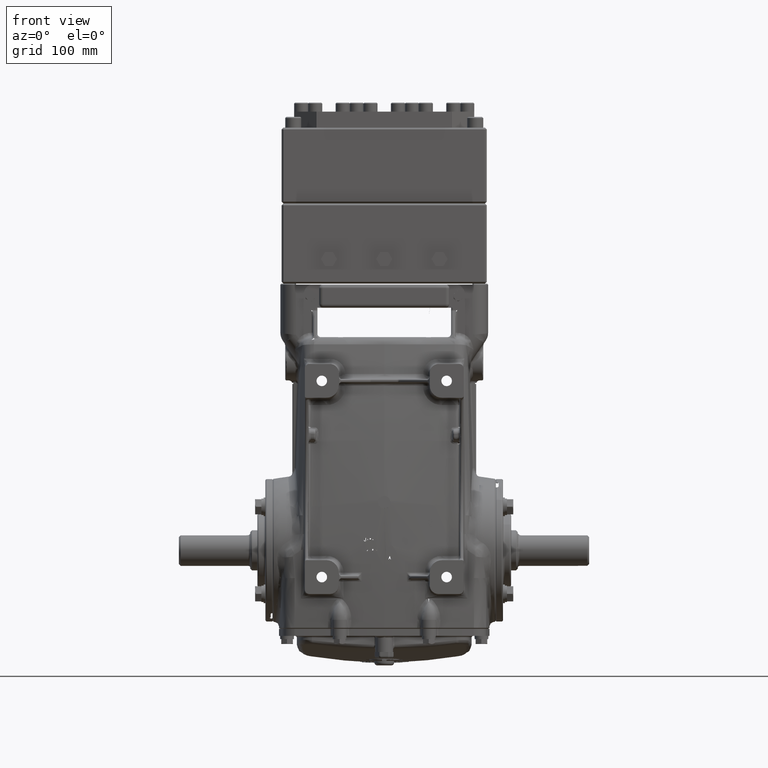
[diagram: clean part render]
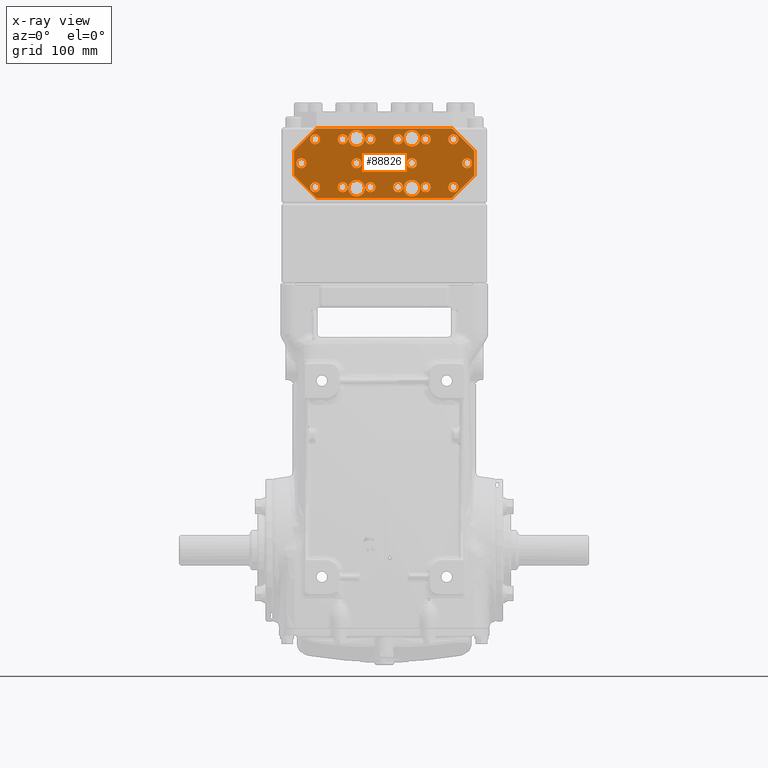
[diagram: x-ray — body ghosted, one internal face saturated and labeled with its STEP entity id]
A machine part, front view, then the same camera in x-ray: the body is ghosted and one INTERNAL B-rep face — a face not visible from any outside direction — is saturated and labeled: STEP entity #88826.
In plain terms, the highlighted planar face has unit normal (0, -1, 0).
Its self-contained STEP definition (entity closure, byte-faithful):
#409 = EDGE_CURVE ( 'NONE', #23062, #51338, #57036, .T. ) ;
#889 = VERTEX_POINT ( 'NONE', #115837 ) ;
#1219 = EDGE_CURVE ( 'NONE', #4310, #50176, #91720, .T. ) ;
#1520 = EDGE_CURVE ( 'NONE', #87775, #26277, #49721, .T. ) ;
#1598 = EDGE_CURVE ( 'NONE', #96779, #42719, #25414, .T. ) ;
#1761 = CARTESIAN_POINT ( 'NONE',  ( 1.830708661417318472, 3.858267716535350722, 18.14357431170542512 ) ) ;
#1814 = ORIENTED_EDGE ( 'NONE', *, *, #44229, .T. ) ;
#1920 = CIRCLE ( 'NONE', #68566, 0.2204724409448816647 ) ;
#1932 = VERTEX_POINT ( 'NONE', #45487 ) ;
#2138 = CIRCLE ( 'NONE', #68801, 0.2204724409448818034 ) ;
#2340 = LINE ( 'NONE', #38660, #75675 ) ;
#2845 = EDGE_CURVE ( 'NONE', #72833, #43502, #76256, .T. ) ;
#3068 = CARTESIAN_POINT ( 'NONE',  ( 3.051181102362205966, 3.858267716535351166, 18.14357431170542512 ) ) ;
#3196 = DIRECTION ( 'NONE',  ( 2.863731955691605534E-16, -1.000000000000000000, 2.785928135093067720E-17 ) ) ;
#3257 = EDGE_CURVE ( 'NONE', #5382, #97002, #116225, .T. ) ;
#3804 = CIRCLE ( 'NONE', #70474, 0.2204724409448816647 ) ;
#3873 = DIRECTION ( 'NONE',  ( 1.000000000000000000, 0.0000000000000000000, 0.0000000000000000000 ) ) ;
#3879 = CIRCLE ( 'NONE', #70547, 0.2204724409448816647 ) ;
#4211 = CARTESIAN_POINT ( 'NONE',  ( 3.051181102362210407, 3.858267716535351166, 16.02965403475128170 ) ) ;
#4310 = VERTEX_POINT ( 'NONE', #92508 ) ;
#4699 = EDGE_CURVE ( 'NONE', #28249, #71355, #101410, .T. ) ;
#4933 = CARTESIAN_POINT ( 'NONE',  ( -3.051181102362204633, 3.858267716535436431, 16.02965403475128170 ) ) ;
#5369 = VECTOR ( 'NONE', #114430, 39.37007874015748143 ) ;
#5382 = VERTEX_POINT ( 'NONE', #21489 ) ;
#5445 = AXIS2_PLACEMENT_3D ( 'NONE', #44732, #81182, #117596 ) ;
#5825 = DIRECTION ( 'NONE',  ( -2.863731955691605534E-16, 1.000000000000000000, -2.785928135093067720E-17 ) ) ;
#6250 = AXIS2_PLACEMENT_3D ( 'NONE', #53762, #90230, #8420 ) ;
#6418 = AXIS2_PLACEMENT_3D ( 'NONE', #113872, #32036, #68457 ) ;
#6785 = FACE_BOUND ( 'NONE', #44187, .T. ) ;
#6945 = ORIENTED_EDGE ( 'NONE', *, *, #72203, .T. ) ;
#7100 = CIRCLE ( 'NONE', #73795, 0.3629921259842515124 ) ;
#7338 = CIRCLE ( 'NONE', #74031, 0.2204724409448816647 ) ;
#7364 = FACE_BOUND ( 'NONE', #90207, .T. ) ;
#7425 = EDGE_CURVE ( 'NONE', #7820, #99810, #12777, .T. ) ;
#7820 = VERTEX_POINT ( 'NONE', #66185 ) ;
#8121 = ORIENTED_EDGE ( 'NONE', *, *, #110276, .T. ) ;
#8156 = CARTESIAN_POINT ( 'NONE',  ( -1.220472440944882608, 3.858267716535349834, 17.08661417322834808 ) ) ;
#8374 = VERTEX_POINT ( 'NONE', #90385 ) ;
#8420 = DIRECTION ( 'NONE',  ( 1.000000000000000000, 0.0000000000000000000, 0.0000000000000000000 ) ) ;
#8725 = DIRECTION ( 'NONE',  ( 1.000000000000000000, 0.0000000000000000000, 0.0000000000000000000 ) ) ;
#8970 = DIRECTION ( 'NONE',  ( -1.000000000000000000, 0.0000000000000000000, 0.0000000000000000000 ) ) ;
#9026 = EDGE_CURVE ( 'NONE', #86258, #65920, #81362, .T. ) ;
#9059 = VERTEX_POINT ( 'NONE', #90101 ) ;
#9411 = CIRCLE ( 'NONE', #76125, 0.2204724409448816647 ) ;
#9540 = AXIS2_PLACEMENT_3D ( 'NONE', #21072, #57422, #93942 ) ;
#10053 = VERTEX_POINT ( 'NONE', #60786 ) ;
#10295 = VERTEX_POINT ( 'NONE', #55970 ) ;
#10653 = LINE ( 'NONE', #47029, #11857 ) ;
#10759 = EDGE_LOOP ( 'NONE', ( #17824, #67074 ) ) ;
#10902 = ORIENTED_EDGE ( 'NONE', *, *, #66620, .F. ) ;
#11202 = DIRECTION ( 'NONE',  ( -2.863731955691605534E-16, 1.000000000000000000, -2.785928135093067720E-17 ) ) ;
#11282 = EDGE_CURVE ( 'NONE', #889, #113065, #56842, .T. ) ;
#11583 = CARTESIAN_POINT ( 'NONE',  ( 2.051181102362204633, 3.858267716535350722, 16.02965403475128170 ) ) ;
#11734 = DIRECTION ( 'NONE',  ( -0.7071067811865473507, -2.221959152992422926E-16, -0.7071067811865476838 ) ) ;
#11857 = VECTOR ( 'NONE', #83467, 39.37007874015748143 ) ;
#12152 = DIRECTION ( 'NONE',  ( -0.7071067811865475727, -1.827969417747897574E-16, 0.7071067811865474617 ) ) ;
#12540 = CARTESIAN_POINT ( 'NONE',  ( 1.610236220472441193, 3.858267716535350722, 16.02965403475128170 ) ) ;
#12627 = AXIS2_PLACEMENT_3D ( 'NONE', #49187, #85642, #3873 ) ;
#12673 = ORIENTED_EDGE ( 'NONE', *, *, #22395, .F. ) ;
#12777 = CIRCLE ( 'NONE', #79496, 0.2204724409448816647 ) ;
#12781 = VERTEX_POINT ( 'NONE', #105324 ) ;
#13461 = CARTESIAN_POINT ( 'NONE',  ( 3.661417322834645383, 3.858267716535350278, 17.08661417322834808 ) ) ;
#13901 = ORIENTED_EDGE ( 'NONE', *, *, #67931, .T. ) ;
#13988 = DIRECTION ( 'NONE',  ( -2.863731955691605534E-16, 1.000000000000000000, -2.785928135093067720E-17 ) ) ;
#14076 = AXIS2_PLACEMENT_3D ( 'NONE', #13461, #49826, #86293 ) ;
#14082 = CARTESIAN_POINT ( 'NONE',  ( -0.6102362204724387507, 3.858267716535350278, 16.02965403475127459 ) ) ;
#14086 = AXIS2_PLACEMENT_3D ( 'NONE', #37987, #74468, #110893 ) ;
#14594 = ORIENTED_EDGE ( 'NONE', *, *, #114781, .T. ) ;
#14858 = CARTESIAN_POINT ( 'NONE',  ( -1.830708661417326244, 3.858267716535348502, 16.02965403475127459 ) ) ;
#14930 = DIRECTION ( 'NONE',  ( 1.000000000000000000, 0.0000000000000000000, 0.0000000000000000000 ) ) ;
#14989 = AXIS2_PLACEMENT_3D ( 'NONE', #78052, #114463, #32633 ) ;
#15023 = ORIENTED_EDGE ( 'NONE', *, *, #116140, .T. ) ;
#15392 = EDGE_LOOP ( 'NONE', ( #90386, #12673 ) ) ;
#15861 = CARTESIAN_POINT ( 'NONE',  ( -0.6102362204724387507, 3.858267716535350278, 16.02965403475127459 ) ) ;
#16063 = ORIENTED_EDGE ( 'NONE', *, *, #26549, .F. ) ;
#16308 = FACE_BOUND ( 'NONE', #72778, .T. ) ;
#17180 = EDGE_LOOP ( 'NONE', ( #107696, #52154 ) ) ;
#17698 = CIRCLE ( 'NONE', #84421, 0.2204724409448816647 ) ;
#17824 = ORIENTED_EDGE ( 'NONE', *, *, #57281, .T. ) ;
#18123 = ORIENTED_EDGE ( 'NONE', *, *, #101088, .F. ) ;
#18427 = CARTESIAN_POINT ( 'NONE',  ( 1.830708661417322913, 3.858267716535350722, 16.02965403475128170 ) ) ;
#18600 = DIRECTION ( 'NONE',  ( 1.000000000000000000, 0.0000000000000000000, 0.0000000000000000000 ) ) ;
#19112 = DIRECTION ( 'NONE',  ( -2.863731955691605534E-16, 1.000000000000000000, -2.785928135093067720E-17 ) ) ;
#19143 = EDGE_CURVE ( 'NONE', #113065, #889, #44314, .T. ) ;
#19162 = ORIENTED_EDGE ( 'NONE', *, *, #1520, .F. ) ;
#19438 = ORIENTED_EDGE ( 'NONE', *, *, #82698, .T. ) ;
#20151 = ORIENTED_EDGE ( 'NONE', *, *, #117678, .T. ) ;
#20341 = EDGE_CURVE ( 'NONE', #26277, #87775, #34919, .T. ) ;
#20434 = AXIS2_PLACEMENT_3D ( 'NONE', #14082, #50452, #86910 ) ;
#20631 = EDGE_CURVE ( 'NONE', #64426, #90520, #115066, .T. ) ;
#20944 = AXIS2_PLACEMENT_3D ( 'NONE', #18427, #54806, #91287 ) ;
#21072 = CARTESIAN_POINT ( 'NONE',  ( -1.220472440944882608, 3.858267716535349834, 15.98425196850393881 ) ) ;
#21430 = EDGE_CURVE ( 'NONE', #87435, #26663, #57458, .T. ) ;
#21489 = CARTESIAN_POINT ( 'NONE',  ( 1.440944881889765217, 3.858267716535349834, 17.08661417322834808 ) ) ;
#21713 = AXIS2_PLACEMENT_3D ( 'NONE', #22975, #59324, #95845 ) ;
#22232 = EDGE_CURVE ( 'NONE', #9059, #96779, #2340, .T. ) ;
#22393 = CARTESIAN_POINT ( 'NONE',  ( -2.051181102362207742, 3.858267716535348502, 16.02965403475127459 ) ) ;
#22395 = EDGE_CURVE ( 'NONE', #50176, #4310, #7100, .T. ) ;
#22507 = ORIENTED_EDGE ( 'NONE', *, *, #11282, .T. ) ;
#22643 = CARTESIAN_POINT ( 'NONE',  ( 0.6102362204724398609, 3.858267716535350278, 16.02965403475128170 ) ) ;
#22975 = CARTESIAN_POINT ( 'NONE',  ( -3.051181102362209074, 3.858267716535349390, 18.14357431170542512 ) ) ;
#23062 = VERTEX_POINT ( 'NONE', #50763 ) ;
#23171 = EDGE_CURVE ( 'NONE', #42719, #23062, #45313, .T. ) ;
#23408 = CARTESIAN_POINT ( 'NONE',  ( -1.830708661417321803, 3.858267716535348502, 18.14357431170542512 ) ) ;
#24071 = CARTESIAN_POINT ( 'NONE',  ( 0.6102362204724397499, 3.858267716535350278, 18.14357431170541446 ) ) ;
#24668 = FACE_BOUND ( 'NONE', #73986, .T. ) ;
#24956 = AXIS2_PLACEMENT_3D ( 'NONE', #75037, #111459, #29630 ) ;
#25265 = FACE_BOUND ( 'NONE', #45506, .T. ) ;
#25379 = CARTESIAN_POINT ( 'NONE',  ( -3.440944881889762552, 3.858267716535349390, 17.08661417322834808 ) ) ;
#25414 = LINE ( 'NONE', #61760, #55420 ) ;
#25518 = CIRCLE ( 'NONE', #92291, 0.2204724409448816647 ) ;
#25602 = DIRECTION ( 'NONE',  ( 1.000000000000000000, 0.0000000000000000000, 0.0000000000000000000 ) ) ;
#25849 = CARTESIAN_POINT ( 'NONE',  ( -3.976377952755904222, 3.858267716535435543, 15.55118110236221085 ) ) ;
#26277 = VERTEX_POINT ( 'NONE', #102065 ) ;
#26549 = EDGE_CURVE ( 'NONE', #42827, #1932, #66398, .T. ) ;
#26663 = VERTEX_POINT ( 'NONE', #98383 ) ;
#27517 = EDGE_LOOP ( 'NONE', ( #14594, #104173 ) ) ;
#28249 = VERTEX_POINT ( 'NONE', #82950 ) ;
#28790 = ORIENTED_EDGE ( 'NONE', *, *, #21430, .F. ) ;
#28914 = VERTEX_POINT ( 'NONE', #36506 ) ;
#28939 = VECTOR ( 'NONE', #11734, 39.37007874015748143 ) ;
#29507 = CARTESIAN_POINT ( 'NONE',  ( 3.976377952755905554, 3.858267716535351166, 17.63779527559055538 ) ) ;
#29630 = DIRECTION ( 'NONE',  ( -1.000000000000000000, 0.0000000000000000000, 0.0000000000000000000 ) ) ;
#29834 = AXIS2_PLACEMENT_3D ( 'NONE', #70948, #107400, #25602 ) ;
#30895 = DIRECTION ( 'NONE',  ( -1.000000000000000000, 0.0000000000000000000, 0.0000000000000000000 ) ) ;
#30956 = VERTEX_POINT ( 'NONE', #39675 ) ;
#31044 = DIRECTION ( 'NONE',  ( -2.863731955691605534E-16, 1.000000000000000000, -2.785928135093067720E-17 ) ) ;
#31463 = AXIS2_PLACEMENT_3D ( 'NONE', #15861, #52253, #88714 ) ;
#32014 = CARTESIAN_POINT ( 'NONE',  ( 3.661417322834645383, 3.858267716535350278, 17.08661417322834808 ) ) ;
#32036 = DIRECTION ( 'NONE',  ( -2.863731955691605534E-16, 1.000000000000000000, -2.785928135093067720E-17 ) ) ;
#32114 = CARTESIAN_POINT ( 'NONE',  ( -1.610236220472440083, 3.858267716535348502, 18.14357431170542512 ) ) ;
#32633 = DIRECTION ( 'NONE',  ( -1.000000000000000000, 0.0000000000000000000, 0.0000000000000000000 ) ) ;
#33551 = VERTEX_POINT ( 'NONE', #38338 ) ;
#33702 = CARTESIAN_POINT ( 'NONE',  ( 0.8574803149606319286, 3.858267716535350722, 15.98425196850393881 ) ) ;
#33731 = DIRECTION ( 'NONE',  ( 2.863731955691605534E-16, -1.000000000000000000, 2.785928135093067720E-17 ) ) ;
#34136 = DIRECTION ( 'NONE',  ( -2.863731955691605534E-16, 1.000000000000000000, -2.785928135093067720E-17 ) ) ;
#34167 = FACE_BOUND ( 'NONE', #104483, .T. ) ;
#34333 = ORIENTED_EDGE ( 'NONE', *, *, #108439, .T. ) ;
#34763 = FACE_OUTER_BOUND ( 'NONE', #46681, .T. ) ;
#34919 = CIRCLE ( 'NONE', #50177, 0.3629921259842515124 ) ;
#35358 = CARTESIAN_POINT ( 'NONE',  ( -3.051181102362204633, 3.858267716535436431, 16.02965403475128170 ) ) ;
#36339 = LINE ( 'NONE', #72805, #76788 ) ;
#36506 = CARTESIAN_POINT ( 'NONE',  ( 0.8307086614173214700, 3.858267716535350278, 16.02965403475128170 ) ) ;
#37240 = CIRCLE ( 'NONE', #104051, 0.2204724409448816647 ) ;
#37783 = CARTESIAN_POINT ( 'NONE',  ( 2.992125984251967630, 3.858267716535351166, 18.62204724409448886 ) ) ;
#37987 = CARTESIAN_POINT ( 'NONE',  ( -1.830708661417321803, 3.858267716535348502, 18.14357431170542512 ) ) ;
#38077 = DIRECTION ( 'NONE',  ( -2.863731955691605534E-16, 1.000000000000000000, -2.785928135093067720E-17 ) ) ;
#38194 = EDGE_CURVE ( 'NONE', #68977, #107352, #25518, .T. ) ;
#38316 = EDGE_CURVE ( 'NONE', #28914, #10295, #96125, .T. ) ;
#38338 = CARTESIAN_POINT ( 'NONE',  ( 2.051181102362200193, 3.858267716535350722, 18.14357431170542512 ) ) ;
#38660 = CARTESIAN_POINT ( 'NONE',  ( -2.992125984251970738, 3.858267716535349834, 18.62204724409449597 ) ) ;
#39403 = DIRECTION ( 'NONE',  ( -2.863731955691605534E-16, 1.000000000000000000, -2.785928135093067720E-17 ) ) ;
#39514 = DIRECTION ( 'NONE',  ( -1.000000000000000000, 0.0000000000000000000, 0.0000000000000000000 ) ) ;
#39675 = CARTESIAN_POINT ( 'NONE',  ( -0.8307086614173204708, 3.858267716535350278, 16.02965403475127459 ) ) ;
#40028 = EDGE_LOOP ( 'NONE', ( #53250, #13901 ) ) ;
#40541 = CARTESIAN_POINT ( 'NONE',  ( -0.3897637795275571970, 3.858267716535350278, 18.14357431170541446 ) ) ;
#40546 = DIRECTION ( 'NONE',  ( -2.863731955691605534E-16, 1.000000000000000000, -2.785928135093067720E-17 ) ) ;
#41091 = AXIS2_PLACEMENT_3D ( 'NONE', #8156, #44521, #80980 ) ;
#41287 = DIRECTION ( 'NONE',  ( -2.863731955691605534E-16, 1.000000000000000000, -2.785928135093067720E-17 ) ) ;
#41568 = LINE ( 'NONE', #78019, #5369 ) ;
#41617 = CARTESIAN_POINT ( 'NONE',  ( -1.220472440944882608, 3.858267716535348502, 18.18897637795275912 ) ) ;
#42171 = DIRECTION ( 'NONE',  ( 1.000000000000000000, 0.0000000000000000000, 0.0000000000000000000 ) ) ;
#42719 = VERTEX_POINT ( 'NONE', #29507 ) ;
#42827 = VERTEX_POINT ( 'NONE', #61038 ) ;
#43126 = FACE_BOUND ( 'NONE', #51272, .T. ) ;
#43391 = CARTESIAN_POINT ( 'NONE',  ( -3.661417322834644050, 3.858267716535349390, 17.08661417322834808 ) ) ;
#43502 = VERTEX_POINT ( 'NONE', #45080 ) ;
#43518 = AXIS2_PLACEMENT_3D ( 'NONE', #43391, #79854, #116246 ) ;
#43669 = VERTEX_POINT ( 'NONE', #80723 ) ;
#43708 = FACE_BOUND ( 'NONE', #100930, .T. ) ;
#43936 = CIRCLE ( 'NONE', #110718, 0.2204724409448816647 ) ;
#44187 = EDGE_LOOP ( 'NONE', ( #16063, #10902 ) ) ;
#44229 = EDGE_CURVE ( 'NONE', #94319, #113404, #95067, .T. ) ;
#44295 = EDGE_LOOP ( 'NONE', ( #96541, #8121 ) ) ;
#44314 = CIRCLE ( 'NONE', #111072, 0.2204724409448816647 ) ;
#44521 = DIRECTION ( 'NONE',  ( -2.863731955691605534E-16, 1.000000000000000000, -2.785928135093067720E-17 ) ) ;
#44568 = AXIS2_PLACEMENT_3D ( 'NONE', #22643, #58985, #95503 ) ;
#44732 = CARTESIAN_POINT ( 'NONE',  ( 0.6102362204724397499, 3.858267716535350278, 18.14357431170541446 ) ) ;
#45080 = CARTESIAN_POINT ( 'NONE',  ( -0.8574803149606310404, 3.858267716535349834, 15.98425196850393881 ) ) ;
#45313 = LINE ( 'NONE', #81765, #109857 ) ;
#45487 = CARTESIAN_POINT ( 'NONE',  ( 0.8574803149606319286, 3.858267716535349834, 18.18897637795275912 ) ) ;
#45506 = EDGE_LOOP ( 'NONE', ( #100691, #65620 ) ) ;
#46257 = CIRCLE ( 'NONE', #113008, 0.3629921259842515124 ) ;
#46681 = EDGE_LOOP ( 'NONE', ( #117213, #28790, #63998, #65181, #111783, #47874, #49043, #67527 ) ) ;
#47029 = CARTESIAN_POINT ( 'NONE',  ( -2.992125984251966297, 3.858267716535436431, 15.55118110236221085 ) ) ;
#47453 = CARTESIAN_POINT ( 'NONE',  ( 2.992125984251971627, 3.858267716535350722, 15.55118110236221085 ) ) ;
#47572 = DIRECTION ( 'NONE',  ( 1.000000000000000000, 0.0000000000000000000, 0.0000000000000000000 ) ) ;
#47874 = ORIENTED_EDGE ( 'NONE', *, *, #1598, .F. ) ;
#48019 = ORIENTED_EDGE ( 'NONE', *, *, #38194, .T. ) ;
#48938 = AXIS2_PLACEMENT_3D ( 'NONE', #14858, #51232, #87675 ) ;
#49043 = ORIENTED_EDGE ( 'NONE', *, *, #22232, .F. ) ;
#49187 = CARTESIAN_POINT ( 'NONE',  ( -0.6102362204724388617, 3.858267716535350278, 18.14357431170541446 ) ) ;
#49465 = AXIS2_PLACEMENT_3D ( 'NONE', #87597, #5825, #42171 ) ;
#49721 = CIRCLE ( 'NONE', #101254, 0.3629921259842515124 ) ;
#49826 = DIRECTION ( 'NONE',  ( -2.863731955691605534E-16, 1.000000000000000000, -2.785928135093067720E-17 ) ) ;
#49881 = AXIS2_PLACEMENT_3D ( 'NONE', #115963, #34136, #70570 ) ;
#50176 = VERTEX_POINT ( 'NONE', #83865 ) ;
#50177 = AXIS2_PLACEMENT_3D ( 'NONE', #84956, #3196, #39514 ) ;
#50180 = CARTESIAN_POINT ( 'NONE',  ( -1.583464566929134065, 3.858267716535349834, 15.98425196850393881 ) ) ;
#50326 = CIRCLE ( 'NONE', #117084, 0.3629921259842515124 ) ;
#50358 = DIRECTION ( 'NONE',  ( 1.000000000000000000, 0.0000000000000000000, 0.0000000000000000000 ) ) ;
#50452 = DIRECTION ( 'NONE',  ( -2.863731955691605534E-16, 1.000000000000000000, -2.785928135093067720E-17 ) ) ;
#50763 = CARTESIAN_POINT ( 'NONE',  ( 3.976377952755905554, 3.858267716535351166, 16.53543307086614433 ) ) ;
#50977 = ORIENTED_EDGE ( 'NONE', *, *, #20631, .T. ) ;
#51232 = DIRECTION ( 'NONE',  ( -2.863731955691605534E-16, 1.000000000000000000, -2.785928135093067720E-17 ) ) ;
#51272 = EDGE_LOOP ( 'NONE', ( #69151, #19162 ) ) ;
#51338 = VERTEX_POINT ( 'NONE', #47453 ) ;
#52005 = ORIENTED_EDGE ( 'NONE', *, *, #89478, .T. ) ;
#52154 = ORIENTED_EDGE ( 'NONE', *, *, #110257, .T. ) ;
#52253 = DIRECTION ( 'NONE',  ( -2.863731955691605534E-16, 1.000000000000000000, -2.785928135093067720E-17 ) ) ;
#52644 = VERTEX_POINT ( 'NONE', #72318 ) ;
#52697 = FACE_BOUND ( 'NONE', #94470, .T. ) ;
#53250 = ORIENTED_EDGE ( 'NONE', *, *, #56533, .T. ) ;
#53762 = CARTESIAN_POINT ( 'NONE',  ( -3.661417322834644050, 3.858267716535349390, 17.08661417322834808 ) ) ;
#53936 = CARTESIAN_POINT ( 'NONE',  ( 3.271653543307091905, 3.858267716535351166, 16.02965403475128170 ) ) ;
#54054 = CARTESIAN_POINT ( 'NONE',  ( 1.830708661417318472, 3.858267716535350722, 18.14357431170542512 ) ) ;
#54298 = CARTESIAN_POINT ( 'NONE',  ( 1.220472440944883497, 3.858267716535349834, 18.18897637795275912 ) ) ;
#54421 = CARTESIAN_POINT ( 'NONE',  ( 1.000000000000001776, 3.858267716535349834, 17.08661417322834808 ) ) ;
#54806 = DIRECTION ( 'NONE',  ( -2.863731955691605534E-16, 1.000000000000000000, -2.785928135093067720E-17 ) ) ;
#55360 = VERTEX_POINT ( 'NONE', #93009 ) ;
#55420 = VECTOR ( 'NONE', #98288, 39.37007874015748854 ) ;
#55482 = DIRECTION ( 'NONE',  ( 1.000000000000000000, 0.0000000000000000000, 0.0000000000000000000 ) ) ;
#55872 = AXIS2_PLACEMENT_3D ( 'NONE', #4211, #40546, #77007 ) ;
#55970 = CARTESIAN_POINT ( 'NONE',  ( 0.3897637795275581407, 3.858267716535350278, 16.02965403475128170 ) ) ;
#56533 = EDGE_CURVE ( 'NONE', #80873, #10053, #9411, .T. ) ;
#56842 = CIRCLE ( 'NONE', #5445, 0.2204724409448816647 ) ;
#57036 = LINE ( 'NONE', #93553, #28939 ) ;
#57281 = EDGE_CURVE ( 'NONE', #43669, #62561, #3804, .T. ) ;
#57422 = DIRECTION ( 'NONE',  ( 2.863731955691605534E-16, -1.000000000000000000, 2.785928135093067720E-17 ) ) ;
#57458 = LINE ( 'NONE', #93979, #77454 ) ;
#57646 = CIRCLE ( 'NONE', #6250, 0.2204724409448816647 ) ;
#57811 = CIRCLE ( 'NONE', #6418, 0.2204724409448816647 ) ;
#58985 = DIRECTION ( 'NONE',  ( -2.863731955691605534E-16, 1.000000000000000000, -2.785928135093067720E-17 ) ) ;
#59324 = DIRECTION ( 'NONE',  ( -2.863731955691605534E-16, 1.000000000000000000, -2.785928135093067720E-17 ) ) ;
#59357 = EDGE_LOOP ( 'NONE', ( #6945, #87256 ) ) ;
#59755 = DIRECTION ( 'NONE',  ( -2.863731955691605534E-16, 1.000000000000000000, -2.785928135093067720E-17 ) ) ;
#60232 = CARTESIAN_POINT ( 'NONE',  ( -3.051181102362209074, 3.858267716535349390, 18.14357431170542512 ) ) ;
#60431 = DIRECTION ( 'NONE',  ( -2.863731955691605534E-16, 1.000000000000000000, -2.785928135093067720E-17 ) ) ;
#60786 = CARTESIAN_POINT ( 'NONE',  ( -2.051181102362203301, 3.858267716535348502, 18.14357431170542512 ) ) ;
#60901 = ORIENTED_EDGE ( 'NONE', *, *, #105226, .T. ) ;
#61038 = CARTESIAN_POINT ( 'NONE',  ( 1.583464566929134953, 3.858267716535349834, 18.18897637795275912 ) ) ;
#61612 = FACE_BOUND ( 'NONE', #59357, .T. ) ;
#61760 = CARTESIAN_POINT ( 'NONE',  ( 2.992125984251967630, 3.858267716535351166, 18.62204724409448886 ) ) ;
#61928 = ORIENTED_EDGE ( 'NONE', *, *, #38316, .T. ) ;
#62197 = DIRECTION ( 'NONE',  ( 2.863731955691625748E-16, -1.000000000000000000, 2.785928135093067104E-17 ) ) ;
#62561 = VERTEX_POINT ( 'NONE', #106040 ) ;
#62989 = EDGE_CURVE ( 'NONE', #62561, #43669, #3879, .T. ) ;
#63534 = AXIS2_PLACEMENT_3D ( 'NONE', #63894, #100402, #18600 ) ;
#63894 = CARTESIAN_POINT ( 'NONE',  ( -1.830708661417326244, 3.858267716535348502, 16.02965403475127459 ) ) ;
#63998 = ORIENTED_EDGE ( 'NONE', *, *, #78675, .F. ) ;
#64036 = CIRCLE ( 'NONE', #12627, 0.2204724409448817202 ) ;
#64426 = VERTEX_POINT ( 'NONE', #108700 ) ;
#65181 = ORIENTED_EDGE ( 'NONE', *, *, #409, .F. ) ;
#65470 = CIRCLE ( 'NONE', #14076, 0.2204724409448816647 ) ;
#65478 = CIRCLE ( 'NONE', #14086, 0.2204724409448816647 ) ;
#65620 = ORIENTED_EDGE ( 'NONE', *, *, #4699, .T. ) ;
#65920 = VERTEX_POINT ( 'NONE', #99702 ) ;
#66185 = CARTESIAN_POINT ( 'NONE',  ( -2.830708661417327576, 3.858267716535349390, 18.14357431170542512 ) ) ;
#66398 = CIRCLE ( 'NONE', #14989, 0.3629921259842515124 ) ;
#66620 = EDGE_CURVE ( 'NONE', #1932, #42827, #46257, .T. ) ;
#66624 = EDGE_CURVE ( 'NONE', #105619, #9059, #36339, .T. ) ;
#66933 = EDGE_LOOP ( 'NONE', ( #77563, #15023 ) ) ;
#67074 = ORIENTED_EDGE ( 'NONE', *, *, #62989, .T. ) ;
#67462 = DIRECTION ( 'NONE',  ( 1.000000000000000000, 0.0000000000000000000, 0.0000000000000000000 ) ) ;
#67527 = ORIENTED_EDGE ( 'NONE', *, *, #66624, .F. ) ;
#67931 = EDGE_CURVE ( 'NONE', #10053, #80873, #65478, .T. ) ;
#68439 = DIRECTION ( 'NONE',  ( -2.863731955691605534E-16, 1.000000000000000000, -2.785928135093067720E-17 ) ) ;
#68457 = DIRECTION ( 'NONE',  ( 1.000000000000000000, 0.0000000000000000000, 0.0000000000000000000 ) ) ;
#68566 = AXIS2_PLACEMENT_3D ( 'NONE', #95801, #13988, #50358 ) ;
#68801 = AXIS2_PLACEMENT_3D ( 'NONE', #112877, #31044, #67462 ) ;
#68977 = VERTEX_POINT ( 'NONE', #12540 ) ;
#69151 = ORIENTED_EDGE ( 'NONE', *, *, #20341, .F. ) ;
#69905 = ORIENTED_EDGE ( 'NONE', *, *, #83001, .T. ) ;
#70168 = DIRECTION ( 'NONE',  ( -1.000000000000000000, 0.0000000000000000000, 0.0000000000000000000 ) ) ;
#70474 = AXIS2_PLACEMENT_3D ( 'NONE', #4933, #41287, #77741 ) ;
#70547 = AXIS2_PLACEMENT_3D ( 'NONE', #35358, #71802, #108266 ) ;
#70570 = DIRECTION ( 'NONE',  ( 1.000000000000000000, 0.0000000000000000000, 0.0000000000000000000 ) ) ;
#70601 = FACE_BOUND ( 'NONE', #40028, .T. ) ;
#70948 = CARTESIAN_POINT ( 'NONE',  ( -0.6102362204724388617, 3.858267716535350278, 18.14357431170541446 ) ) ;
#71198 = FACE_BOUND ( 'NONE', #93947, .T. ) ;
#71355 = VERTEX_POINT ( 'NONE', #114339 ) ;
#71802 = DIRECTION ( 'NONE',  ( -2.863731955691605534E-16, 1.000000000000000000, -2.785928135093067720E-17 ) ) ;
#71888 = CIRCLE ( 'NONE', #20434, 0.2204724409448817202 ) ;
#72203 = EDGE_CURVE ( 'NONE', #55360, #30956, #82992, .T. ) ;
#72318 = CARTESIAN_POINT ( 'NONE',  ( 3.440944881889763440, 3.858267716535350278, 17.08661417322834808 ) ) ;
#72395 = CIRCLE ( 'NONE', #20944, 0.2204724409448816647 ) ;
#72778 = EDGE_LOOP ( 'NONE', ( #109715, #20151 ) ) ;
#72805 = CARTESIAN_POINT ( 'NONE',  ( -3.976377952755904222, 3.858267716535348058, 17.63779527559055538 ) ) ;
#72833 = VERTEX_POINT ( 'NONE', #50180 ) ;
#73150 = CIRCLE ( 'NONE', #21713, 0.2204724409448816647 ) ;
#73435 = ORIENTED_EDGE ( 'NONE', *, *, #81387, .T. ) ;
#73795 = AXIS2_PLACEMENT_3D ( 'NONE', #41617, #78063, #114473 ) ;
#73986 = EDGE_LOOP ( 'NONE', ( #18123, #90079 ) ) ;
#74031 = AXIS2_PLACEMENT_3D ( 'NONE', #1761, #38077, #74566 ) ;
#74463 = ORIENTED_EDGE ( 'NONE', *, *, #94315, .T. ) ;
#74468 = DIRECTION ( 'NONE',  ( -2.863731955691605534E-16, 1.000000000000000000, -2.785928135093067720E-17 ) ) ;
#74566 = DIRECTION ( 'NONE',  ( 1.000000000000000000, 0.0000000000000000000, 0.0000000000000000000 ) ) ;
#75037 = CARTESIAN_POINT ( 'NONE',  ( -1.220472440944882608, 3.858267716535348502, 18.18897637795275912 ) ) ;
#75134 = DIRECTION ( 'NONE',  ( 1.000000000000000000, 2.863731955691625748E-16, 4.977743363697658575E-16 ) ) ;
#75531 = EDGE_LOOP ( 'NONE', ( #73435, #1814 ) ) ;
#75675 = VECTOR ( 'NONE', #75134, 39.37007874015748143 ) ;
#75883 = DIRECTION ( 'NONE',  ( 1.000000000000000000, 0.0000000000000000000, 0.0000000000000000000 ) ) ;
#76125 = AXIS2_PLACEMENT_3D ( 'NONE', #23408, #59755, #96279 ) ;
#76234 = EDGE_CURVE ( 'NONE', #12781, #33551, #7338, .T. ) ;
#76256 = CIRCLE ( 'NONE', #9540, 0.3629921259842515124 ) ;
#76301 = CARTESIAN_POINT ( 'NONE',  ( -1.220472440944882608, 3.858267716535349834, 15.98425196850393881 ) ) ;
#76788 = VECTOR ( 'NONE', #109249, 39.37007874015748143 ) ;
#77007 = DIRECTION ( 'NONE',  ( 1.000000000000000000, 0.0000000000000000000, 0.0000000000000000000 ) ) ;
#77454 = VECTOR ( 'NONE', #12152, 39.37007874015748143 ) ;
#77563 = ORIENTED_EDGE ( 'NONE', *, *, #7425, .T. ) ;
#77741 = DIRECTION ( 'NONE',  ( 1.000000000000000000, 0.0000000000000000000, 0.0000000000000000000 ) ) ;
#78019 = CARTESIAN_POINT ( 'NONE',  ( -3.976377952755904222, 3.858267716535348058, 17.63779527559055538 ) ) ;
#78052 = CARTESIAN_POINT ( 'NONE',  ( 1.220472440944883497, 3.858267716535349834, 18.18897637795275912 ) ) ;
#78063 = DIRECTION ( 'NONE',  ( 2.863731955691605534E-16, -1.000000000000000000, 2.785928135093067720E-17 ) ) ;
#78675 = EDGE_CURVE ( 'NONE', #51338, #87435, #10653, .T. ) ;
#79496 = AXIS2_PLACEMENT_3D ( 'NONE', #60232, #96759, #14930 ) ;
#79597 = FACE_BOUND ( 'NONE', #66933, .T. ) ;
#79854 = DIRECTION ( 'NONE',  ( -2.863731955691605534E-16, 1.000000000000000000, -2.785928135093067720E-17 ) ) ;
#80072 = EDGE_LOOP ( 'NONE', ( #61928, #74463 ) ) ;
#80173 = FACE_BOUND ( 'NONE', #27517, .T. ) ;
#80723 = CARTESIAN_POINT ( 'NONE',  ( -2.830708661417323135, 3.858267716535436431, 16.02965403475128170 ) ) ;
#80873 = VERTEX_POINT ( 'NONE', #32114 ) ;
#80980 = DIRECTION ( 'NONE',  ( 1.000000000000000000, 0.0000000000000000000, 0.0000000000000000000 ) ) ;
#81182 = DIRECTION ( 'NONE',  ( -2.863731955691605534E-16, 1.000000000000000000, -2.785928135093067720E-17 ) ) ;
#81362 = CIRCLE ( 'NONE', #29834, 0.2204724409448817202 ) ;
#81387 = EDGE_CURVE ( 'NONE', #113404, #94319, #57646, .T. ) ;
#81765 = CARTESIAN_POINT ( 'NONE',  ( 3.976377952755905554, 3.858267716535351166, 17.63779527559055538 ) ) ;
#82316 = EDGE_CURVE ( 'NONE', #83273, #116277, #107390, .T. ) ;
#82698 = EDGE_CURVE ( 'NONE', #116277, #83273, #57811, .T. ) ;
#82950 = CARTESIAN_POINT ( 'NONE',  ( -1.440944881889764106, 3.858267716535349834, 17.08661417322834808 ) ) ;
#82992 = CIRCLE ( 'NONE', #31463, 0.2204724409448817202 ) ;
#83001 = EDGE_CURVE ( 'NONE', #52644, #86534, #65470, .T. ) ;
#83273 = VERTEX_POINT ( 'NONE', #108334 ) ;
#83467 = DIRECTION ( 'NONE',  ( -1.000000000000000000, -2.863731955691625748E-16, -3.151718652143126634E-16 ) ) ;
#83865 = CARTESIAN_POINT ( 'NONE',  ( -1.583464566929134065, 3.858267716535348502, 18.18897637795275912 ) ) ;
#84010 = CARTESIAN_POINT ( 'NONE',  ( -3.881889763779525548, 3.858267716535349390, 17.08661417322834808 ) ) ;
#84421 = AXIS2_PLACEMENT_3D ( 'NONE', #54054, #90528, #8725 ) ;
#84956 = CARTESIAN_POINT ( 'NONE',  ( 1.220472440944883497, 3.858267716535350722, 15.98425196850393881 ) ) ;
#85214 = CIRCLE ( 'NONE', #48938, 0.2204724409448816647 ) ;
#85642 = DIRECTION ( 'NONE',  ( -2.863731955691605534E-16, 1.000000000000000000, -2.785928135093067720E-17 ) ) ;
#86258 = VERTEX_POINT ( 'NONE', #40541 ) ;
#86293 = DIRECTION ( 'NONE',  ( 1.000000000000000000, 0.0000000000000000000, 0.0000000000000000000 ) ) ;
#86534 = VERTEX_POINT ( 'NONE', #93070 ) ;
#86910 = DIRECTION ( 'NONE',  ( 1.000000000000000000, 0.0000000000000000000, 0.0000000000000000000 ) ) ;
#87256 = ORIENTED_EDGE ( 'NONE', *, *, #107108, .T. ) ;
#87435 = VERTEX_POINT ( 'NONE', #96165 ) ;
#87597 = CARTESIAN_POINT ( 'NONE',  ( 1.220472440944883497, 3.858267716535349834, 17.08661417322834808 ) ) ;
#87675 = DIRECTION ( 'NONE',  ( 1.000000000000000000, 0.0000000000000000000, 0.0000000000000000000 ) ) ;
#87775 = VERTEX_POINT ( 'NONE', #33702 ) ;
#88354 = CARTESIAN_POINT ( 'NONE',  ( -3.976377952755904222, 3.858267716535348058, 17.63779527559055538 ) ) ;
#88572 = FACE_BOUND ( 'NONE', #15392, .T. ) ;
#88714 = DIRECTION ( 'NONE',  ( 1.000000000000000000, 0.0000000000000000000, 0.0000000000000000000 ) ) ;
#88826 = ADVANCED_FACE ( 'NONE', ( #24668, #88572, #6785, #43126, #79597, #115992, #34167, #70601, #107059, #25265, #61612, #98132, #16308, #52697, #89161, #7364, #43708, #80173, #116580, #34763, #71198 ), #107653, .T. ) ;
#89161 = FACE_BOUND ( 'NONE', #44295, .T. ) ;
#89478 = EDGE_CURVE ( 'NONE', #90520, #64426, #85214, .T. ) ;
#89672 = CARTESIAN_POINT ( 'NONE',  ( -3.271653543307091017, 3.858267716535349390, 18.14357431170542512 ) ) ;
#89835 = CIRCLE ( 'NONE', #105069, 0.2204724409448816647 ) ;
#90079 = ORIENTED_EDGE ( 'NONE', *, *, #2845, .F. ) ;
#90101 = CARTESIAN_POINT ( 'NONE',  ( -2.992125984251970738, 3.858267716535349834, 18.62204724409449597 ) ) ;
#90207 = EDGE_LOOP ( 'NONE', ( #34333, #48019 ) ) ;
#90230 = DIRECTION ( 'NONE',  ( -2.863731955691605534E-16, 1.000000000000000000, -2.785928135093067720E-17 ) ) ;
#90385 = CARTESIAN_POINT ( 'NONE',  ( 3.271653543307087464, 3.858267716535351166, 18.14357431170542512 ) ) ;
#90386 = ORIENTED_EDGE ( 'NONE', *, *, #1219, .F. ) ;
#90520 = VERTEX_POINT ( 'NONE', #22393 ) ;
#90528 = DIRECTION ( 'NONE',  ( -2.863731955691605534E-16, 1.000000000000000000, -2.785928135093067720E-17 ) ) ;
#90770 = DIRECTION ( 'NONE',  ( 2.863731955691605534E-16, -1.000000000000000000, 2.785928135093067720E-17 ) ) ;
#91099 = EDGE_CURVE ( 'NONE', #26663, #105619, #41568, .T. ) ;
#91287 = DIRECTION ( 'NONE',  ( 1.000000000000000000, 0.0000000000000000000, 0.0000000000000000000 ) ) ;
#91720 = CIRCLE ( 'NONE', #24956, 0.3629921259842515124 ) ;
#92291 = AXIS2_PLACEMENT_3D ( 'NONE', #100907, #19112, #55482 ) ;
#92508 = CARTESIAN_POINT ( 'NONE',  ( -0.8574803149606310404, 3.858267716535348502, 18.18897637795275912 ) ) ;
#92661 = CIRCLE ( 'NONE', #41091, 0.2204724409448816647 ) ;
#93009 = CARTESIAN_POINT ( 'NONE',  ( -0.3897637795275570305, 3.858267716535350278, 16.02965403475127459 ) ) ;
#93036 = CARTESIAN_POINT ( 'NONE',  ( 0.6102362204724398609, 3.858267716535350278, 16.02965403475128170 ) ) ;
#93070 = CARTESIAN_POINT ( 'NONE',  ( 3.881889763779526881, 3.858267716535350278, 17.08661417322834808 ) ) ;
#93264 = EDGE_CURVE ( 'NONE', #8374, #100724, #1920, .T. ) ;
#93553 = CARTESIAN_POINT ( 'NONE',  ( 2.992125984251971627, 3.858267716535350722, 15.55118110236221085 ) ) ;
#93942 = DIRECTION ( 'NONE',  ( -1.000000000000000000, 0.0000000000000000000, 0.0000000000000000000 ) ) ;
#93947 = EDGE_LOOP ( 'NONE', ( #60901, #69905 ) ) ;
#93979 = CARTESIAN_POINT ( 'NONE',  ( -3.976377952755904222, 3.858267716535435543, 16.53543307086614433 ) ) ;
#94315 = EDGE_CURVE ( 'NONE', #10295, #28914, #43936, .T. ) ;
#94319 = VERTEX_POINT ( 'NONE', #84010 ) ;
#94470 = EDGE_LOOP ( 'NONE', ( #22507, #104308 ) ) ;
#95067 = CIRCLE ( 'NONE', #43518, 0.2204724409448816647 ) ;
#95503 = DIRECTION ( 'NONE',  ( 1.000000000000000000, 0.0000000000000000000, 0.0000000000000000000 ) ) ;
#95801 = CARTESIAN_POINT ( 'NONE',  ( 3.051181102362205966, 3.858267716535351166, 18.14357431170542512 ) ) ;
#95845 = DIRECTION ( 'NONE',  ( 1.000000000000000000, 0.0000000000000000000, 0.0000000000000000000 ) ) ;
#96125 = CIRCLE ( 'NONE', #44568, 0.2204724409448816647 ) ;
#96165 = CARTESIAN_POINT ( 'NONE',  ( -2.992125984251966297, 3.858267716535436431, 15.55118110236221085 ) ) ;
#96279 = DIRECTION ( 'NONE',  ( 1.000000000000000000, 0.0000000000000000000, 0.0000000000000000000 ) ) ;
#96541 = ORIENTED_EDGE ( 'NONE', *, *, #3257, .T. ) ;
#96759 = DIRECTION ( 'NONE',  ( -2.863731955691605534E-16, 1.000000000000000000, -2.785928135093067720E-17 ) ) ;
#96779 = VERTEX_POINT ( 'NONE', #37783 ) ;
#96960 = DIRECTION ( 'NONE',  ( 1.000000000000000000, 0.0000000000000000000, 0.0000000000000000000 ) ) ;
#97002 = VERTEX_POINT ( 'NONE', #54421 ) ;
#98132 = FACE_BOUND ( 'NONE', #80072, .T. ) ;
#98288 = DIRECTION ( 'NONE',  ( 0.7071067811865472397, 1.827969417747891411E-16, -0.7071067811865476838 ) ) ;
#98383 = CARTESIAN_POINT ( 'NONE',  ( -3.976377952755904222, 3.858267716535435543, 16.53543307086614433 ) ) ;
#98730 = DIRECTION ( 'NONE',  ( -1.000000000000000000, -2.863731955691625748E-16, -3.608224830031761222E-16 ) ) ;
#99702 = CARTESIAN_POINT ( 'NONE',  ( -0.8307086614173206929, 3.858267716535350278, 18.14357431170541446 ) ) ;
#99810 = VERTEX_POINT ( 'NONE', #89672 ) ;
#100402 = DIRECTION ( 'NONE',  ( -2.863731955691605534E-16, 1.000000000000000000, -2.785928135093067720E-17 ) ) ;
#100691 = ORIENTED_EDGE ( 'NONE', *, *, #105360, .T. ) ;
#100724 = VERTEX_POINT ( 'NONE', #112277 ) ;
#100907 = CARTESIAN_POINT ( 'NONE',  ( 1.830708661417322913, 3.858267716535350722, 16.02965403475128170 ) ) ;
#100930 = EDGE_LOOP ( 'NONE', ( #19438, #111937 ) ) ;
#101088 = EDGE_CURVE ( 'NONE', #43502, #72833, #50326, .T. ) ;
#101254 = AXIS2_PLACEMENT_3D ( 'NONE', #115554, #33731, #70168 ) ;
#101410 = CIRCLE ( 'NONE', #49881, 0.2204724409448816647 ) ;
#102065 = CARTESIAN_POINT ( 'NONE',  ( 1.583464566929134953, 3.858267716535350722, 15.98425196850393881 ) ) ;
#104051 = AXIS2_PLACEMENT_3D ( 'NONE', #32014, #68439, #104916 ) ;
#104173 = ORIENTED_EDGE ( 'NONE', *, *, #76234, .T. ) ;
#104308 = ORIENTED_EDGE ( 'NONE', *, *, #19143, .T. ) ;
#104483 = EDGE_LOOP ( 'NONE', ( #50977, #52005 ) ) ;
#104916 = DIRECTION ( 'NONE',  ( 1.000000000000000000, 0.0000000000000000000, 0.0000000000000000000 ) ) ;
#105069 = AXIS2_PLACEMENT_3D ( 'NONE', #3068, #39403, #75883 ) ;
#105226 = EDGE_CURVE ( 'NONE', #86534, #52644, #37240, .T. ) ;
#105324 = CARTESIAN_POINT ( 'NONE',  ( 1.610236220472436752, 3.858267716535350722, 18.14357431170542512 ) ) ;
#105360 = EDGE_CURVE ( 'NONE', #71355, #28249, #92661, .T. ) ;
#105619 = VERTEX_POINT ( 'NONE', #88354 ) ;
#106040 = CARTESIAN_POINT ( 'NONE',  ( -3.271653543307086576, 3.858267716535436431, 16.02965403475128170 ) ) ;
#106095 = AXIS2_PLACEMENT_3D ( 'NONE', #25849, #62197, #98730 ) ;
#107059 = FACE_BOUND ( 'NONE', #75531, .T. ) ;
#107108 = EDGE_CURVE ( 'NONE', #30956, #55360, #71888, .T. ) ;
#107352 = VERTEX_POINT ( 'NONE', #11583 ) ;
#107390 = CIRCLE ( 'NONE', #55872, 0.2204724409448816647 ) ;
#107400 = DIRECTION ( 'NONE',  ( -2.863731955691605534E-16, 1.000000000000000000, -2.785928135093067720E-17 ) ) ;
#107653 = PLANE ( 'NONE',  #106095 ) ;
#107696 = ORIENTED_EDGE ( 'NONE', *, *, #93264, .T. ) ;
#108266 = DIRECTION ( 'NONE',  ( 1.000000000000000000, 0.0000000000000000000, 0.0000000000000000000 ) ) ;
#108334 = CARTESIAN_POINT ( 'NONE',  ( 2.830708661417328464, 3.858267716535351166, 16.02965403475128170 ) ) ;
#108439 = EDGE_CURVE ( 'NONE', #107352, #68977, #72395, .T. ) ;
#108700 = CARTESIAN_POINT ( 'NONE',  ( -1.610236220472444524, 3.858267716535348502, 16.02965403475127459 ) ) ;
#109249 = DIRECTION ( 'NONE',  ( 0.7071067811865473507, 2.221959152992422926E-16, 0.7071067811865476838 ) ) ;
#109715 = ORIENTED_EDGE ( 'NONE', *, *, #9026, .T. ) ;
#109857 = VECTOR ( 'NONE', #118169, 39.37007874015748143 ) ;
#110257 = EDGE_CURVE ( 'NONE', #100724, #8374, #89835, .T. ) ;
#110276 = EDGE_CURVE ( 'NONE', #97002, #5382, #2138, .T. ) ;
#110718 = AXIS2_PLACEMENT_3D ( 'NONE', #93036, #11202, #47572 ) ;
#110893 = DIRECTION ( 'NONE',  ( 1.000000000000000000, 0.0000000000000000000, 0.0000000000000000000 ) ) ;
#111072 = AXIS2_PLACEMENT_3D ( 'NONE', #24071, #60431, #96960 ) ;
#111459 = DIRECTION ( 'NONE',  ( 2.863731955691605534E-16, -1.000000000000000000, 2.785928135093067720E-17 ) ) ;
#111783 = ORIENTED_EDGE ( 'NONE', *, *, #23171, .F. ) ;
#111937 = ORIENTED_EDGE ( 'NONE', *, *, #82316, .T. ) ;
#112277 = CARTESIAN_POINT ( 'NONE',  ( 2.830708661417324024, 3.858267716535351166, 18.14357431170542512 ) ) ;
#112724 = DIRECTION ( 'NONE',  ( 2.863731955691605534E-16, -1.000000000000000000, 2.785928135093067720E-17 ) ) ;
#112877 = CARTESIAN_POINT ( 'NONE',  ( 1.220472440944883497, 3.858267716535349834, 17.08661417322834808 ) ) ;
#113008 = AXIS2_PLACEMENT_3D ( 'NONE', #54298, #90770, #8970 ) ;
#113065 = VERTEX_POINT ( 'NONE', #115213 ) ;
#113404 = VERTEX_POINT ( 'NONE', #25379 ) ;
#113872 = CARTESIAN_POINT ( 'NONE',  ( 3.051181102362210407, 3.858267716535351166, 16.02965403475128170 ) ) ;
#114339 = CARTESIAN_POINT ( 'NONE',  ( -1.000000000000000888, 3.858267716535349834, 17.08661417322834808 ) ) ;
#114430 = DIRECTION ( 'NONE',  ( 2.220446049250314560E-16, 2.785928135093031359E-17, 1.000000000000000000 ) ) ;
#114463 = DIRECTION ( 'NONE',  ( 2.863731955691605534E-16, -1.000000000000000000, 2.785928135093067720E-17 ) ) ;
#114473 = DIRECTION ( 'NONE',  ( -1.000000000000000000, 0.0000000000000000000, 0.0000000000000000000 ) ) ;
#114781 = EDGE_CURVE ( 'NONE', #33551, #12781, #17698, .T. ) ;
#115066 = CIRCLE ( 'NONE', #63534, 0.2204724409448816647 ) ;
#115213 = CARTESIAN_POINT ( 'NONE',  ( 0.3897637795275580852, 3.858267716535350278, 18.14357431170541446 ) ) ;
#115554 = CARTESIAN_POINT ( 'NONE',  ( 1.220472440944883497, 3.858267716535350722, 15.98425196850393881 ) ) ;
#115837 = CARTESIAN_POINT ( 'NONE',  ( 0.8307086614173213590, 3.858267716535350278, 18.14357431170541446 ) ) ;
#115963 = CARTESIAN_POINT ( 'NONE',  ( -1.220472440944882608, 3.858267716535349834, 17.08661417322834808 ) ) ;
#115992 = FACE_BOUND ( 'NONE', #10759, .T. ) ;
#116140 = EDGE_CURVE ( 'NONE', #99810, #7820, #73150, .T. ) ;
#116225 = CIRCLE ( 'NONE', #49465, 0.2204724409448818034 ) ;
#116246 = DIRECTION ( 'NONE',  ( 1.000000000000000000, 0.0000000000000000000, 0.0000000000000000000 ) ) ;
#116277 = VERTEX_POINT ( 'NONE', #53936 ) ;
#116580 = FACE_BOUND ( 'NONE', #17180, .T. ) ;
#117084 = AXIS2_PLACEMENT_3D ( 'NONE', #76301, #112724, #30895 ) ;
#117213 = ORIENTED_EDGE ( 'NONE', *, *, #91099, .F. ) ;
#117596 = DIRECTION ( 'NONE',  ( 1.000000000000000000, 0.0000000000000000000, 0.0000000000000000000 ) ) ;
#117678 = EDGE_CURVE ( 'NONE', #65920, #86258, #64036, .T. ) ;
#118169 = DIRECTION ( 'NONE',  ( -2.220446049250316039E-16, -2.785928135093031359E-17, -1.000000000000000000 ) ) ;